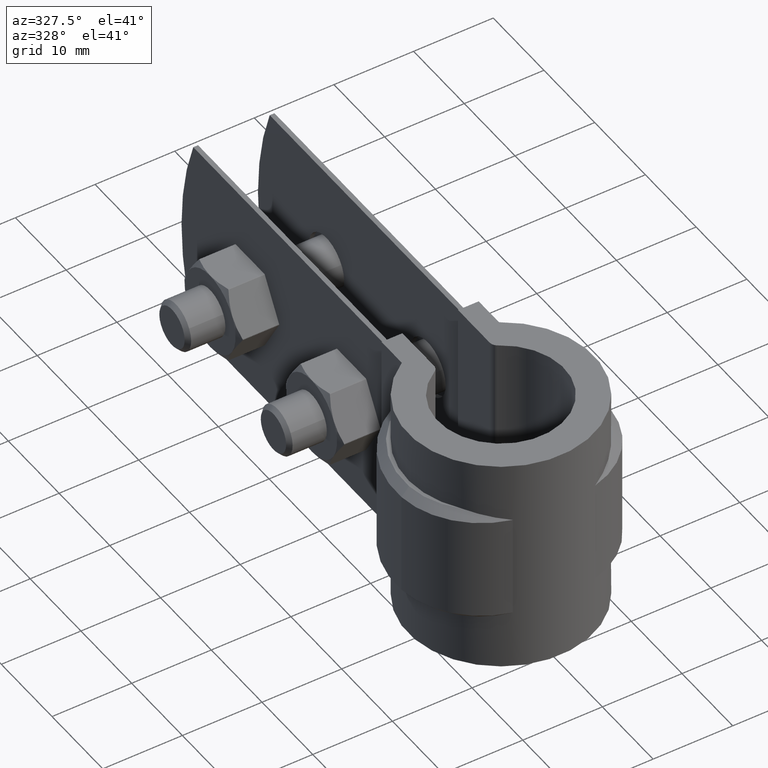
[diagram: clean part render]
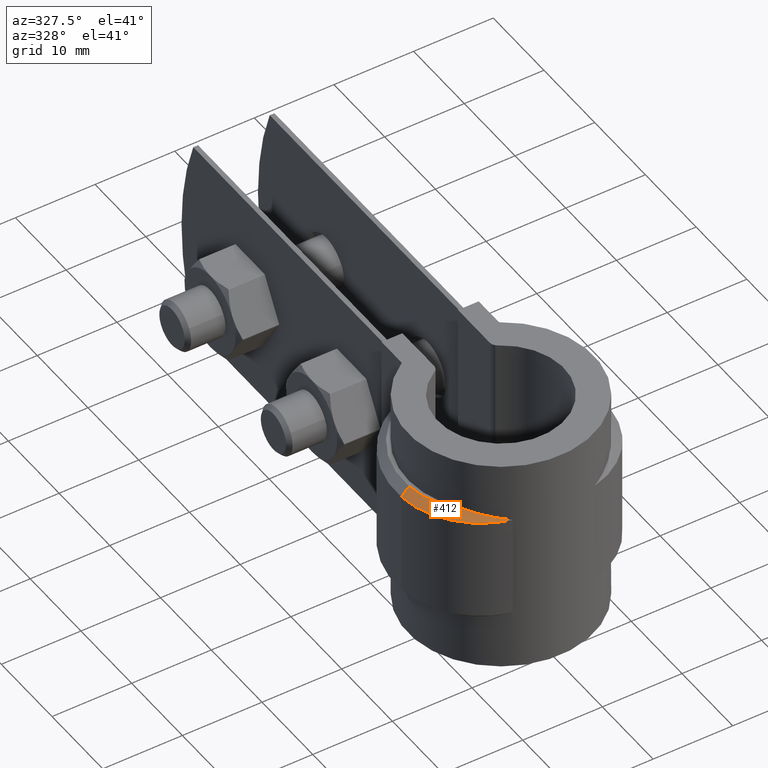
[diagram: same view with one face highlighted and labeled with its STEP entity id]
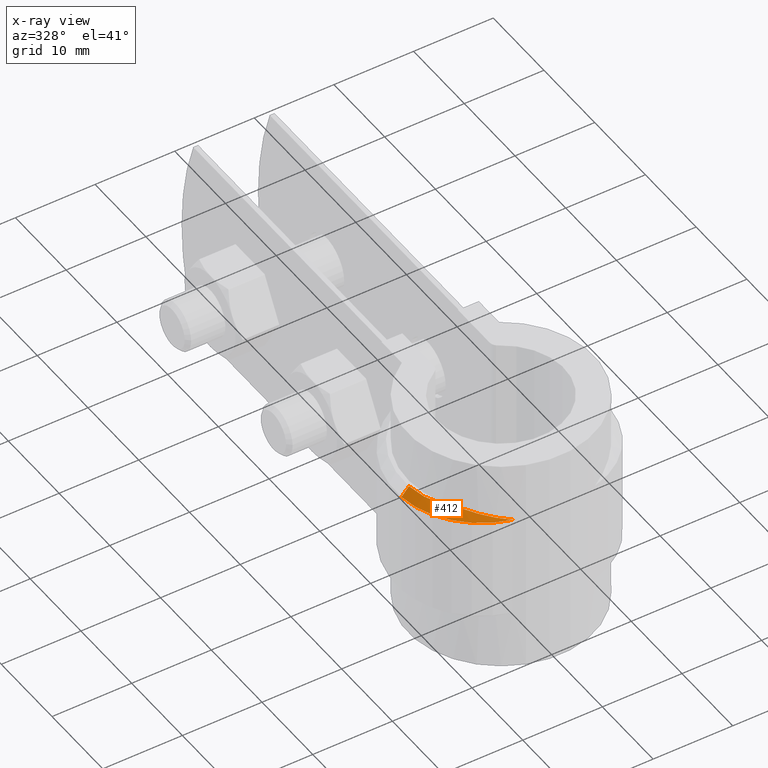
[diagram: x-ray of the same camera — body ghosted, the highlighted face saturated]
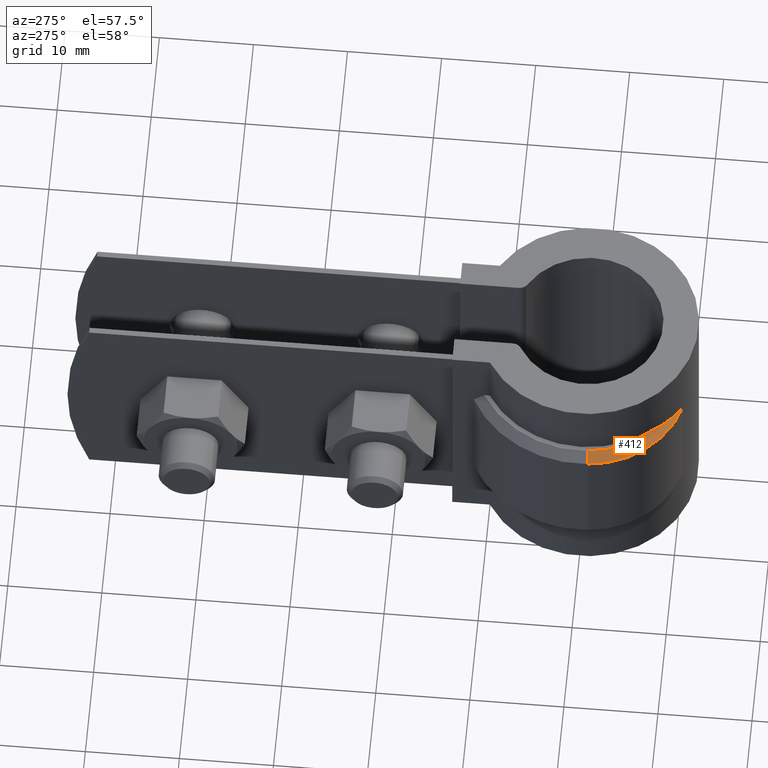
[diagram: same view with one face highlighted and labeled with its STEP entity id]
A machine part, auxiliary view. The second image highlights one B-rep face of the part: STEP entity #412.
The next image is the same camera in x-ray: the body ghosted, the highlighted face saturated — about 0% of this face is hidden behind the body in this view.
A second angle (auxiliary view) of the same face is appended — the face is thin or edge-on in the first view.
In plain terms, the highlighted conical surface has half-angle 45 deg.
Its self-contained STEP definition (entity closure, byte-faithful):
#412 = ADVANCED_FACE( '', ( #713 ), #714, .T. );
#713 = FACE_OUTER_BOUND( '', #1699, .T. );
#714 = CONICAL_SURFACE( '', #1700, 9.60000000000000, 0.785398163397449 );
#1699 = EDGE_LOOP( '', ( #3695, #3696, #3697, #3698 ) );
#1700 = AXIS2_PLACEMENT_3D( '', #3699, #3700, #3701 );
#3695 = ORIENTED_EDGE( '', *, *, #4712, .T. );
#3696 = ORIENTED_EDGE( '', *, *, #4713, .F. );
#3697 = ORIENTED_EDGE( '', *, *, #4693, .F. );
#3698 = ORIENTED_EDGE( '', *, *, #4714, .F. );
#3699 = CARTESIAN_POINT( '', ( -2.57725144291354, -0.199999999999999, -5.00000000000000 ) );
#3700 = DIRECTION( '', ( 0.000000000000000, 0.000000000000000, -1.00000000000000 ) );
#3701 = DIRECTION( '', ( -1.00000000000000, 0.000000000000000, 0.000000000000000 ) );
#4693 = EDGE_CURVE( '', #5419, #5421, #5422, .T. );
#4712 = EDGE_CURVE( '', #5449, #5450, #5451, .T. );
#4713 = EDGE_CURVE( '', #5421, #5450, #5452, .F. );
#4714 = EDGE_CURVE( '', #5449, #5419, #5453, .T. );
#5419 = VERTEX_POINT( '', #7710 );
#5421 = VERTEX_POINT( '', #7712 );
#5422 = B_SPLINE_CURVE_WITH_KNOTS( '', 3, ( #7713, #7714, #7715, #7716, #7717, #7718, #7719, #7720 ), .UNSPECIFIED., .F., .F., ( 4, 2, 2, 4 ), ( 6.82961315453726E-018, 0.00277693447100946, 0.00416540170651419, 0.00555386894201892 ), .UNSPECIFIED. );
#5449 = VERTEX_POINT( '', #7758 );
#5450 = VERTEX_POINT( '', #7759 );
#5451 = LINE( '', #7760, #7761 );
#5452 = CIRCLE( '', #7762, 10.6000000000000 );
#5453 = CIRCLE( '', #7763, 9.60000000000000 );
#7710 = CARTESIAN_POINT( '', ( -9.36374855338443, -6.98995264855141, -4.99999999999999 ) );
#7712 = CARTESIAN_POINT( '', ( -5.17424711952811, -10.4769457260241, -6.00000000000000 ) );
#7713 = CARTESIAN_POINT( '', ( -9.36374855338443, -6.98995264855141, -5.00000000000000 ) );
#7714 = CARTESIAN_POINT( '', ( -8.80777141071310, -7.73474026402723, -5.13374326771682 ) );
#7715 = CARTESIAN_POINT( '', ( -8.17732976921466, -8.39659906995328, -5.28640500911235 ) );
#7716 = CARTESIAN_POINT( '', ( -7.12557712528804, -9.27218792441017, -5.53858140255554 ) );
#7717 = CARTESIAN_POINT( '', ( -6.75595603801261, -9.54504092295829, -5.62683726796246 ) );
#7718 = CARTESIAN_POINT( '', ( -5.98484098098964, -10.0465131583438, -5.80972268592979 ) );
#7719 = CARTESIAN_POINT( '', ( -5.58611941732225, -10.2735344355388, -5.90369658342556 ) );
#7720 = CARTESIAN_POINT( '', ( -5.17424711952811, -10.4769457260241, -6.00000000000000 ) );
#7758 = CARTESIAN_POINT( '', ( -12.1484753701747, -0.942746615087043, -5.00000000000000 ) );
#7759 = CARTESIAN_POINT( '', ( -13.1454778625978, -1.02011605415861, -6.00000000000000 ) );
#7760 = CARTESIAN_POINT( '', ( -12.1484753701747, -0.942746615087043, -5.00000000000000 ) );
#7761 = VECTOR( '', #8620, 1000.00000000000 );
#7762 = AXIS2_PLACEMENT_3D( '', #8621, #8622, #8623 );
#7763 = AXIS2_PLACEMENT_3D( '', #8624, #8625, #8626 );
#8620 = DIRECTION( '', ( -0.704987223252219, -0.0547084550241043, -0.707106781186548 ) );
#8621 = CARTESIAN_POINT( '', ( -2.57725144291354, -0.199999999999999, -6.00000000000000 ) );
#8622 = DIRECTION( '', ( 0.000000000000000, 0.000000000000000, 1.00000000000000 ) );
#8623 = DIRECTION( '', ( 1.00000000000000, 0.000000000000000, 0.000000000000000 ) );
#8624 = CARTESIAN_POINT( '', ( -2.57725144291354, -0.199999999999999, -5.00000000000000 ) );
#8625 = DIRECTION( '', ( 0.000000000000000, 0.000000000000000, 1.00000000000000 ) );
#8626 = DIRECTION( '', ( 1.00000000000000, 0.000000000000000, 0.000000000000000 ) );